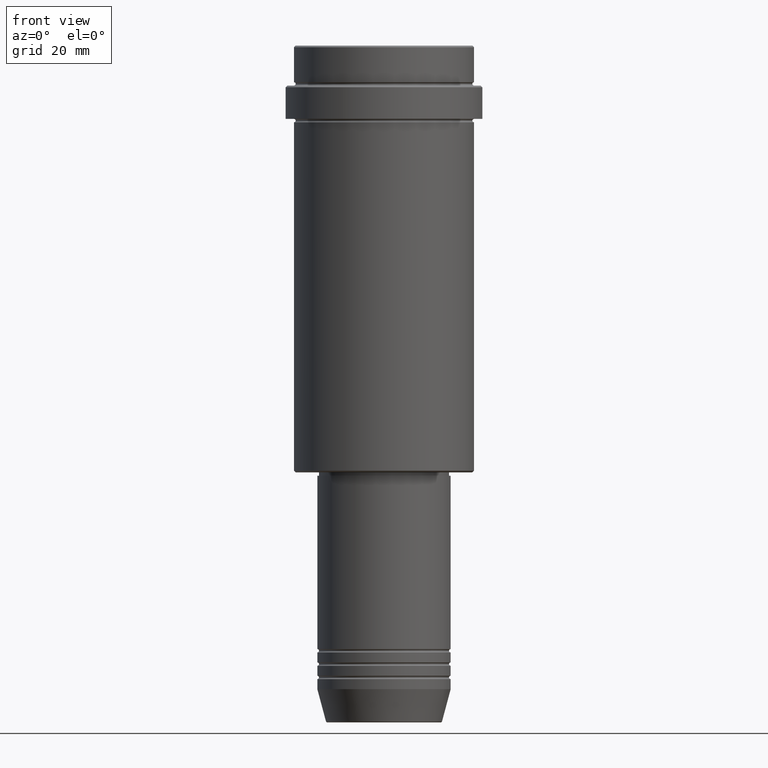
[diagram: clean part render]
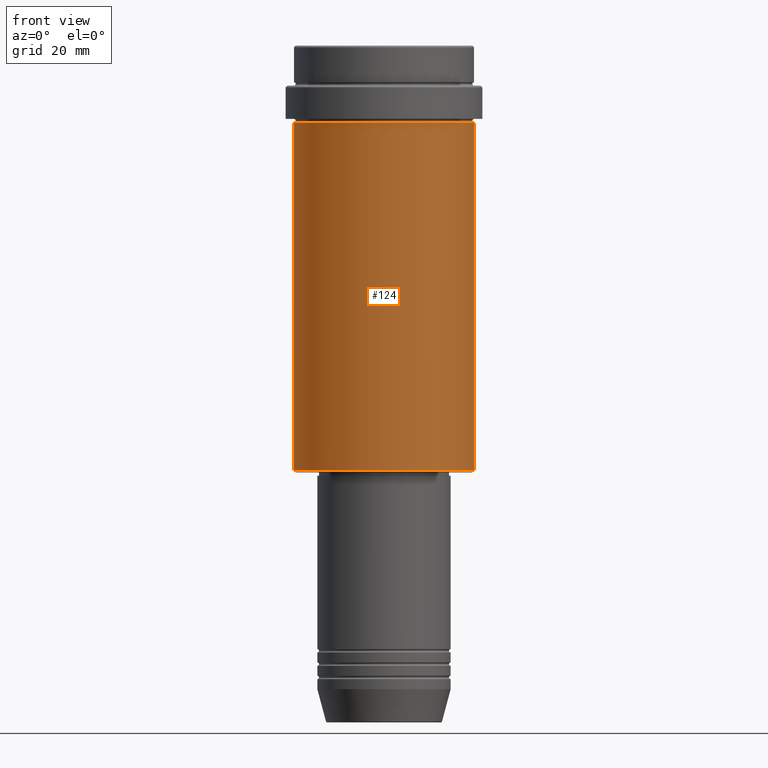
[diagram: same view with one face highlighted and labeled with its STEP entity id]
A machine part, front view. The second image highlights one B-rep face of the part: STEP entity #124.
In plain terms, the highlighted cylindrical surface (partial cylindrical patch) has radius 27 mm, axis along (-0, -0, 1).
Its self-contained STEP definition (entity closure, byte-faithful):
#57 = EDGE_LOOP ( 'NONE', ( #94, #1032, #1160, #250 ) ) ;
#82 = CARTESIAN_POINT ( 'NONE',  ( 0.000000000000000000, 0.000000000000000000, 0.000000000000000000 ) ) ;
#83 = CARTESIAN_POINT ( 'NONE',  ( -27.00000000000000355, 3.306546357697854128E-15, 0.000000000000000000 ) ) ;
#94 = ORIENTED_EDGE ( 'NONE', *, *, #1412, .F. ) ;
#124 = ADVANCED_FACE ( 'NONE', ( #1298 ), #657, .T. ) ;
#202 = CIRCLE ( 'NONE', #1360, 27.00000000000000355 ) ;
#234 = CARTESIAN_POINT ( 'NONE',  ( 27.00000000000000355, 0.000000000000000000, -127.4999999999999432 ) ) ;
#244 = CARTESIAN_POINT ( 'NONE',  ( 27.00000000000000355, 0.000000000000000000, -23.00000000000001421 ) ) ;
#250 = ORIENTED_EDGE ( 'NONE', *, *, #1188, .F. ) ;
#267 = CARTESIAN_POINT ( 'NONE',  ( 0.000000000000000000, 0.000000000000000000, -127.4999999999999432 ) ) ;
#281 = DIRECTION ( 'NONE',  ( -0.000000000000000000, -0.000000000000000000, 1.000000000000000000 ) ) ;
#284 = DIRECTION ( 'NONE',  ( 1.000000000000000000, 0.000000000000000000, 0.000000000000000000 ) ) ;
#285 = EDGE_CURVE ( 'NONE', #1247, #672, #972, .T. ) ;
#309 = DIRECTION ( 'NONE',  ( -0.000000000000000000, -0.000000000000000000, 1.000000000000000000 ) ) ;
#388 = CARTESIAN_POINT ( 'NONE',  ( -27.00000000000000355, 3.306546357697854128E-15, -127.4999999999999432 ) ) ;
#445 = LINE ( 'NONE', #1304, #1063 ) ;
#606 = AXIS2_PLACEMENT_3D ( 'NONE', #267, #281, #1140 ) ;
#657 = CYLINDRICAL_SURFACE ( 'NONE', #671, 27.00000000000000355 ) ;
#671 = AXIS2_PLACEMENT_3D ( 'NONE', #82, #309, #1289 ) ;
#672 = VERTEX_POINT ( 'NONE', #234 ) ;
#720 = DIRECTION ( 'NONE',  ( -0.000000000000000000, -0.000000000000000000, 1.000000000000000000 ) ) ;
#862 = VECTOR ( 'NONE', #1309, 1000.000000000000000 ) ;
#870 = CARTESIAN_POINT ( 'NONE',  ( -27.00000000000000355, 3.306546357697854128E-15, -23.00000000000001421 ) ) ;
#938 = VERTEX_POINT ( 'NONE', #870 ) ;
#956 = EDGE_CURVE ( 'NONE', #672, #1139, #445, .T. ) ;
#972 = CIRCLE ( 'NONE', #606, 27.00000000000000355 ) ;
#1032 = ORIENTED_EDGE ( 'NONE', *, *, #285, .T. ) ;
#1063 = VECTOR ( 'NONE', #1312, 1000.000000000000000 ) ;
#1139 = VERTEX_POINT ( 'NONE', #244 ) ;
#1140 = DIRECTION ( 'NONE',  ( -1.000000000000000000, 0.000000000000000000, 0.000000000000000000 ) ) ;
#1160 = ORIENTED_EDGE ( 'NONE', *, *, #956, .T. ) ;
#1188 = EDGE_CURVE ( 'NONE', #938, #1139, #202, .T. ) ;
#1247 = VERTEX_POINT ( 'NONE', #388 ) ;
#1289 = DIRECTION ( 'NONE',  ( 1.000000000000000000, 0.000000000000000000, 0.000000000000000000 ) ) ;
#1298 = FACE_OUTER_BOUND ( 'NONE', #57, .T. ) ;
#1304 = CARTESIAN_POINT ( 'NONE',  ( 27.00000000000000355, 0.000000000000000000, 0.000000000000000000 ) ) ;
#1309 = DIRECTION ( 'NONE',  ( -0.000000000000000000, -0.000000000000000000, 1.000000000000000000 ) ) ;
#1312 = DIRECTION ( 'NONE',  ( -0.000000000000000000, -0.000000000000000000, 1.000000000000000000 ) ) ;
#1321 = LINE ( 'NONE', #83, #862 ) ;
#1360 = AXIS2_PLACEMENT_3D ( 'NONE', #1371, #720, #284 ) ;
#1371 = CARTESIAN_POINT ( 'NONE',  ( 0.000000000000000000, 0.000000000000000000, -23.00000000000001421 ) ) ;
#1412 = EDGE_CURVE ( 'NONE', #1247, #938, #1321, .T. ) ;